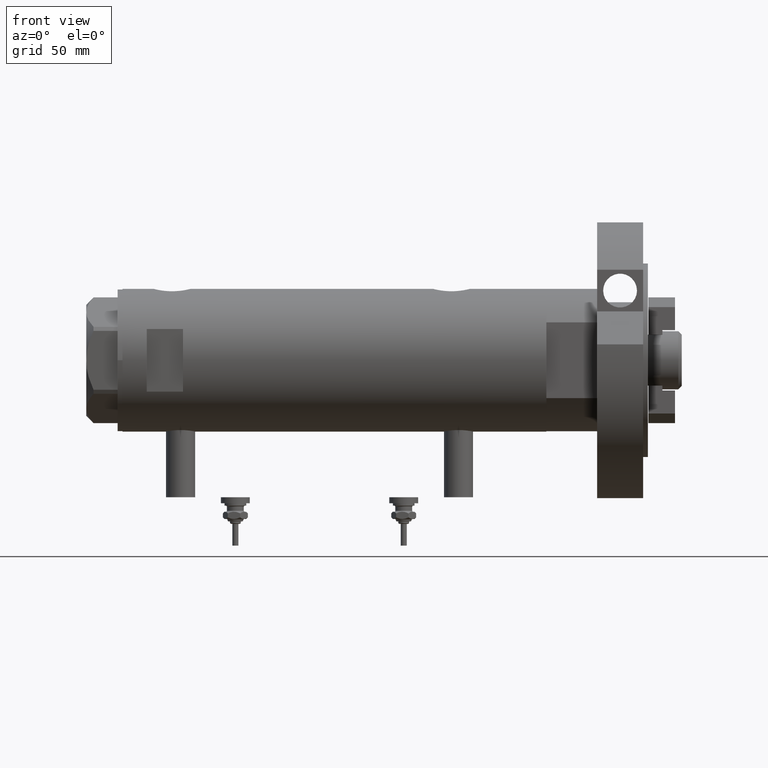
[diagram: clean part render]
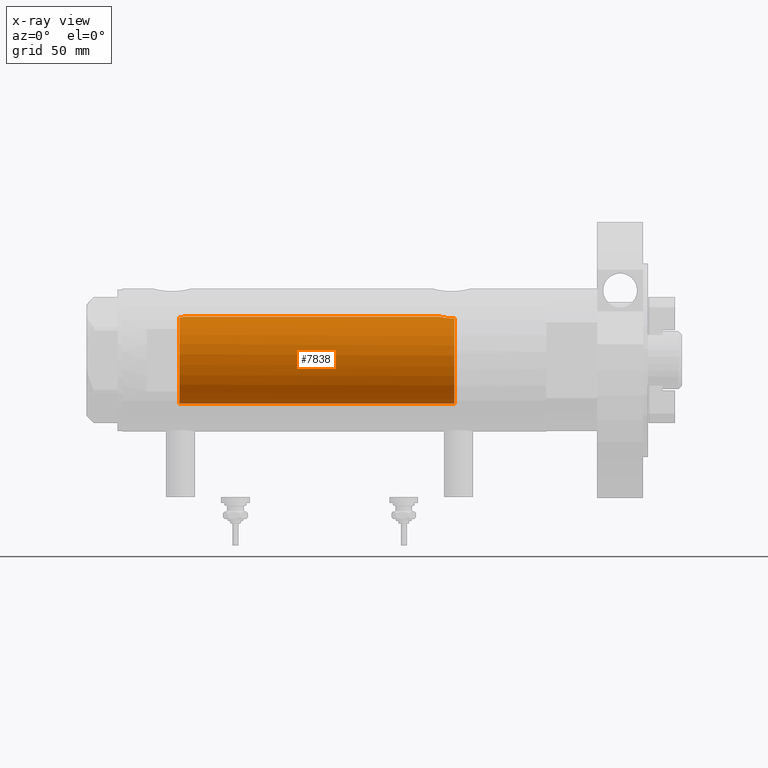
[diagram: x-ray — body ghosted, one internal face saturated and labeled with its STEP entity id]
A machine part, front view, then the same camera in x-ray: the body is ghosted and one INTERNAL B-rep face — a face not visible from any outside direction — is saturated and labeled: STEP entity #7838.
In plain terms, the highlighted cylindrical surface (partial cylindrical patch) has radius 18 mm, axis along (1, 0, -0).
Its self-contained STEP definition (entity closure, byte-faithful):
#5 = CARTESIAN_POINT ( 'NONE',  ( 0.000000000000000000, 0.000000000000000000, 64.09999999999999432 ) ) ;
#28 = CARTESIAN_POINT ( 'NONE',  ( 17.76113839466168187, -2.926207082530021264, -44.50911996042638208 ) ) ;
#78 = CARTESIAN_POINT ( 'NONE',  ( 17.83332390923721533, -2.466220319593701138, 62.89048875048365517 ) ) ;
#124 = EDGE_CURVE ( 'NONE', #2910, #1107, #7394, .T. ) ;
#530 = VECTOR ( 'NONE', #2346, 1000.000000000000000 ) ;
#585 = CARTESIAN_POINT ( 'NONE',  ( 17.94411621822183633, -1.462318180775788568, -43.74532018047459303 ) ) ;
#667 = CARTESIAN_POINT ( 'NONE',  ( 17.53680980608543649, -4.063678955652867408, -45.70014584461345919 ) ) ;
#686 = CARTESIAN_POINT ( 'NONE',  ( 17.58783030962034033, -3.829911878881809173, 64.09999999999999432 ) ) ;
#946 = AXIS2_PLACEMENT_3D ( 'NONE', #5, #7062, #1325 ) ;
#1099 = CARTESIAN_POINT ( 'NONE',  ( 17.37157951943345680, -4.714681855650495912, -49.60000000000000142 ) ) ;
#1107 = VERTEX_POINT ( 'NONE', #6707 ) ;
#1124 = EDGE_CURVE ( 'NONE', #8147, #1107, #6838, .T. ) ;
#1213 = CARTESIAN_POINT ( 'NONE',  ( 17.85233710017094566, -2.306965814323738595, -44.11276266371618249 ) ) ;
#1303 = CARTESIAN_POINT ( 'NONE',  ( 17.33258131920085177, -4.856098292894137636, -48.87181853595665615 ) ) ;
#1325 = DIRECTION ( 'NONE',  ( 1.000000000000000000, 0.000000000000000000, 0.000000000000000000 ) ) ;
#1347 = CARTESIAN_POINT ( 'NONE',  ( 17.32819690210315855, -4.871720223791778714, -48.13420793424216981 ) ) ;
#1427 = VERTEX_POINT ( 'NONE', #6453 ) ;
#1523 = CARTESIAN_POINT ( 'NONE',  ( 18.00000000000000000, 5.958021437579254357E-16, -43.53499999999999659 ) ) ;
#1724 = CARTESIAN_POINT ( 'NONE',  ( 18.00000000000000000, 5.958021437579254357E-16, -43.53499999999999659 ) ) ;
#1857 = CARTESIAN_POINT ( 'NONE',  ( 17.68752450041759516, -3.351772203450730458, -44.85493447381011833 ) ) ;
#1865 = AXIS2_PLACEMENT_3D ( 'NONE', #7172, #8312, #3805 ) ;
#2265 = ORIENTED_EDGE ( 'NONE', *, *, #5692, .F. ) ;
#2346 = DIRECTION ( 'NONE',  ( -0.000000000000000000, -0.000000000000000000, -1.000000000000000000 ) ) ;
#2530 = CARTESIAN_POINT ( 'NONE',  ( 17.91207243579358632, -1.808254927071297313, -43.86838658940776980 ) ) ;
#2544 = CARTESIAN_POINT ( 'NONE',  ( 17.63693340989345515, -3.604419224588179649, 63.81212766824007332 ) ) ;
#2548 = CARTESIAN_POINT ( 'NONE',  ( 0.000000000000000000, 0.000000000000000000, -49.60000000000000853 ) ) ;
#2623 = CARTESIAN_POINT ( 'NONE',  ( 17.49057517990651078, -4.255095079290335924, -46.01249222525177629 ) ) ;
#2910 = VERTEX_POINT ( 'NONE', #1099 ) ;
#2995 = VERTEX_POINT ( 'NONE', #6493 ) ;
#3052 = B_SPLINE_CURVE_WITH_KNOTS ( 'NONE', 3,
 ( #7832, #3910, #3413, #6454, #7652, #78, #4516, #5727, #2544, #686 ),
 .UNSPECIFIED., .F., .F.,
 ( 4, 2, 2, 2, 4 ),
 ( 0.000000000000000000, 0.001102956581910070682, 0.002205913163820141798, 0.003308869745730213564, 0.004411826327640285331 ),
 .UNSPECIFIED. ) ;
#3136 = VERTEX_POINT ( 'NONE', #1724 ) ;
#3305 = FACE_OUTER_BOUND ( 'NONE', #4957, .T. ) ;
#3410 = EDGE_CURVE ( 'NONE', #8147, #1427, #7515, .T. ) ;
#3413 = CARTESIAN_POINT ( 'NONE',  ( 17.98842269988416831, -0.7385803848020507933, 62.27734794098787319 ) ) ;
#3542 = ORIENTED_EDGE ( 'NONE', *, *, #124, .T. ) ;
#3637 = VECTOR ( 'NONE', #3903, 1000.000000000000000 ) ;
#3805 = DIRECTION ( 'NONE',  ( -1.000000000000000000, 0.000000000000000000, 0.000000000000000000 ) ) ;
#3833 = CARTESIAN_POINT ( 'NONE',  ( 17.33821808943283216, -4.836569767017236288, -47.75823404381377202 ) ) ;
#3903 = DIRECTION ( 'NONE',  ( -0.000000000000000000, -0.000000000000000000, -1.000000000000000000 ) ) ;
#3910 = CARTESIAN_POINT ( 'NONE',  ( 18.00000000000000355, -0.3730735969061040325, 62.23499999999998522 ) ) ;
#4358 = ORIENTED_EDGE ( 'NONE', *, *, #3410, .T. ) ;
#4374 = CARTESIAN_POINT ( 'NONE',  ( 17.78501549309440222, -2.778062367771706231, -44.40196575702887571 ) ) ;
#4516 = CARTESIAN_POINT ( 'NONE',  ( 17.78689333688353358, -2.776822659814067507, 63.08837617090291872 ) ) ;
#4561 = DIRECTION ( 'NONE',  ( -1.000000000000000000, 0.000000000000000000, 0.000000000000000000 ) ) ;
#4877 = EDGE_CURVE ( 'NONE', #2910, #3136, #8146, .T. ) ;
#4957 = EDGE_LOOP ( 'NONE', ( #2265, #4964, #5887, #3542, #6245, #4358 ) ) ;
#4964 = ORIENTED_EDGE ( 'NONE', *, *, #6361, .T. ) ;
#5001 = CARTESIAN_POINT ( 'NONE',  ( 17.37991340314490785, -4.684530256828848493, -47.03638461192320364 ) ) ;
#5120 = LINE ( 'NONE', #7712, #3637 ) ;
#5222 = CYLINDRICAL_SURFACE ( 'NONE', #1865, 18.00000000000000000 ) ;
#5231 = DIRECTION ( 'NONE',  ( 0.000000000000000000, 0.000000000000000000, -1.000000000000000000 ) ) ;
#5692 = EDGE_CURVE ( 'NONE', #2995, #1427, #3052, .T. ) ;
#5727 = CARTESIAN_POINT ( 'NONE',  ( 17.68806959355791619, -3.349106256179494423, 63.55213344176306833 ) ) ;
#5887 = ORIENTED_EDGE ( 'NONE', *, *, #4877, .F. ) ;
#6245 = ORIENTED_EDGE ( 'NONE', *, *, #1124, .F. ) ;
#6361 = EDGE_CURVE ( 'NONE', #2995, #3136, #5120, .T. ) ;
#6383 = CARTESIAN_POINT ( 'NONE',  ( 17.41145422212636618, -4.568075757751900667, -46.68573299053986148 ) ) ;
#6453 = CARTESIAN_POINT ( 'NONE',  ( 17.58783030962034033, -3.829911878881809173, 64.09999999999999432 ) ) ;
#6454 = CARTESIAN_POINT ( 'NONE',  ( 17.94467453319816030, -1.455166008437397629, 62.44318072553842569 ) ) ;
#6493 = CARTESIAN_POINT ( 'NONE',  ( 18.00000000000000000, 0.000000000000000000, 62.23499999999999233 ) ) ;
#6707 = CARTESIAN_POINT ( 'NONE',  ( -18.00000000000000000, 0.000000000000000000, -49.60000000000000853 ) ) ;
#6838 = LINE ( 'NONE', #8103, #530 ) ;
#6950 = CARTESIAN_POINT ( 'NONE',  ( 17.83055549281852237, -2.468946622824478077, -44.20402443991358865 ) ) ;
#7040 = CARTESIAN_POINT ( 'NONE',  ( 17.34665145232710515, -4.806531086046565981, -49.23913341666350618 ) ) ;
#7062 = DIRECTION ( 'NONE',  ( 0.000000000000000000, 0.000000000000000000, 1.000000000000000000 ) ) ;
#7074 = CARTESIAN_POINT ( 'NONE',  ( -18.00000000000000000, 0.000000000000000000, 64.09999999999999432 ) ) ;
#7128 = CARTESIAN_POINT ( 'NONE',  ( 17.99999999999999645, -0.1843597763241263676, -43.53499999999998948 ) ) ;
#7172 = CARTESIAN_POINT ( 'NONE',  ( 0.000000000000000000, 0.000000000000000000, 87.59999999999998010 ) ) ;
#7265 = AXIS2_PLACEMENT_3D ( 'NONE', #2548, #5231, #4561 ) ;
#7394 = CIRCLE ( 'NONE', #7265, 18.00000000000000000 ) ;
#7515 = CIRCLE ( 'NONE', #946, 18.00000000000000000 ) ;
#7554 = CARTESIAN_POINT ( 'NONE',  ( 17.37157951943345680, -4.714681855650495912, -49.60000000000000142 ) ) ;
#7590 = CARTESIAN_POINT ( 'NONE',  ( 17.63516507807922906, -3.613050995810182631, -45.12150009659158201 ) ) ;
#7633 = CARTESIAN_POINT ( 'NONE',  ( 17.98578085412773220, -0.7388632979187831351, -43.58783263922211404 ) ) ;
#7652 = CARTESIAN_POINT ( 'NONE',  ( 17.91197612045793619, -1.808534151376000265, 62.56883769349537516 ) ) ;
#7712 = CARTESIAN_POINT ( 'NONE',  ( 18.00000000000000000, 2.204364238465235428E-15, 87.59999999999998010 ) ) ;
#7755 = CARTESIAN_POINT ( 'NONE',  ( 17.99716838826709520, -0.3690012331666944201, -43.54544422515623836 ) ) ;
#7832 = CARTESIAN_POINT ( 'NONE',  ( 18.00000000000000000, 0.000000000000000000, 62.23499999999999233 ) ) ;
#7838 = ADVANCED_FACE ( 'NONE', ( #3305 ), #5222, .F. ) ;
#8103 = CARTESIAN_POINT ( 'NONE',  ( -18.00000000000000000, 0.000000000000000000, 87.59999999999998010 ) ) ;
#8146 = B_SPLINE_CURVE_WITH_KNOTS ( 'NONE', 3,
 ( #7554, #7040, #1303, #1347, #3833, #5001, #6383, #2623, #667, #7590, #1857, #28, #4374, #6950, #1213, #2530, #585, #8254, #7633, #7755, #7128, #1523 ),
 .UNSPECIFIED., .F., .F.,
 ( 4, 2, 2, 2, 2, 2, 2, 2, 2, 2, 4 ),
 ( 0.006434066725458738659, 0.007540005695425722881, 0.008645944665392707104, 0.009751883635359691327, 0.01085782260532667555, 0.01196376157529365977, 0.01251673106027715102, 0.01306970054526064226, 0.01417563951522762475, 0.01472860900021111773, 0.01528157848519461244 ),
 .UNSPECIFIED. ) ;
#8147 = VERTEX_POINT ( 'NONE', #7074 ) ;
#8254 = CARTESIAN_POINT ( 'NONE',  ( 17.97721305204034792, -0.9231636963562631637, -43.61982822371822266 ) ) ;
#8312 = DIRECTION ( 'NONE',  ( -0.000000000000000000, -0.000000000000000000, -1.000000000000000000 ) ) ;